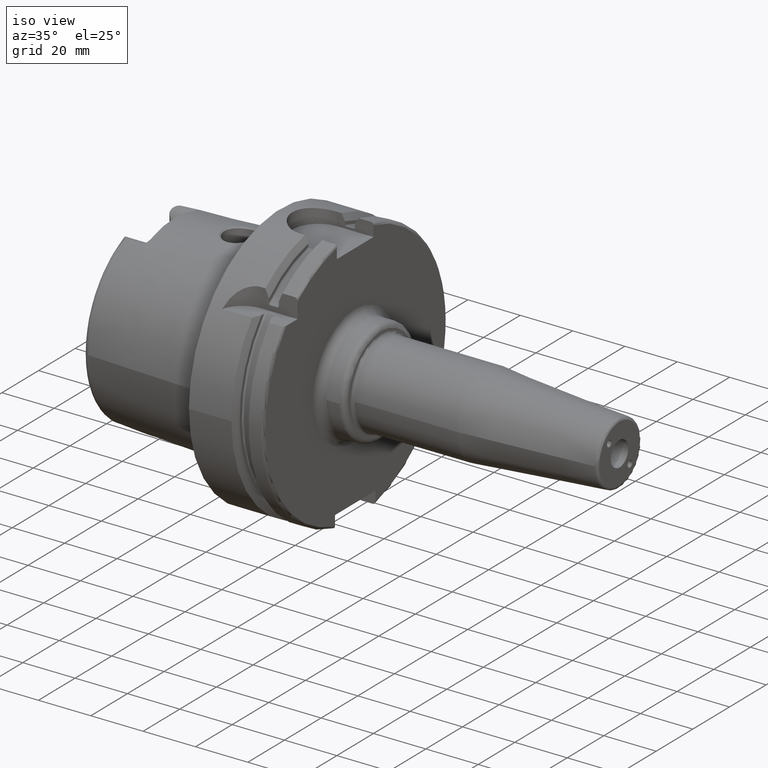
[diagram: clean part render]
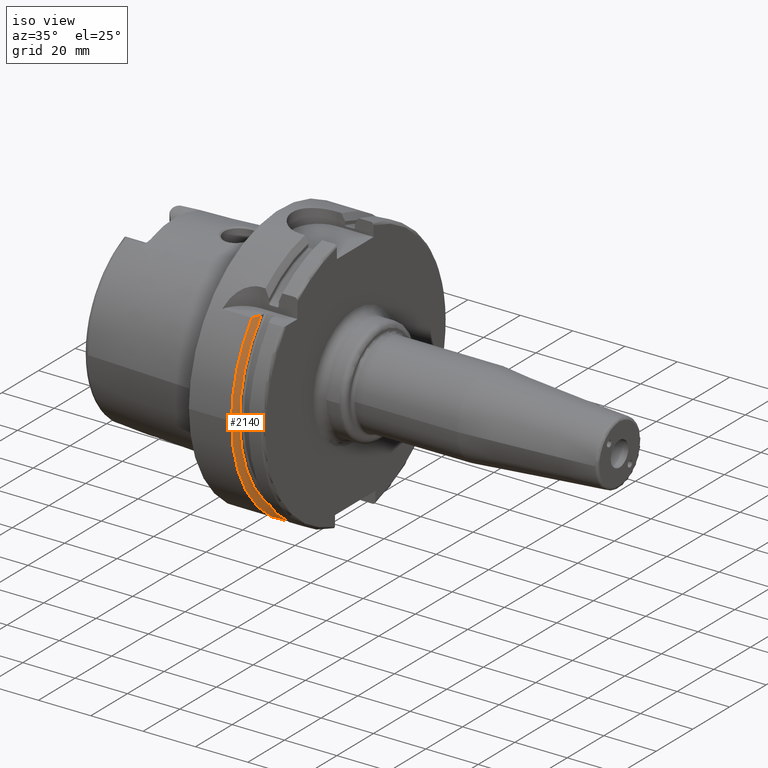
[diagram: same view with one face highlighted and labeled with its STEP entity id]
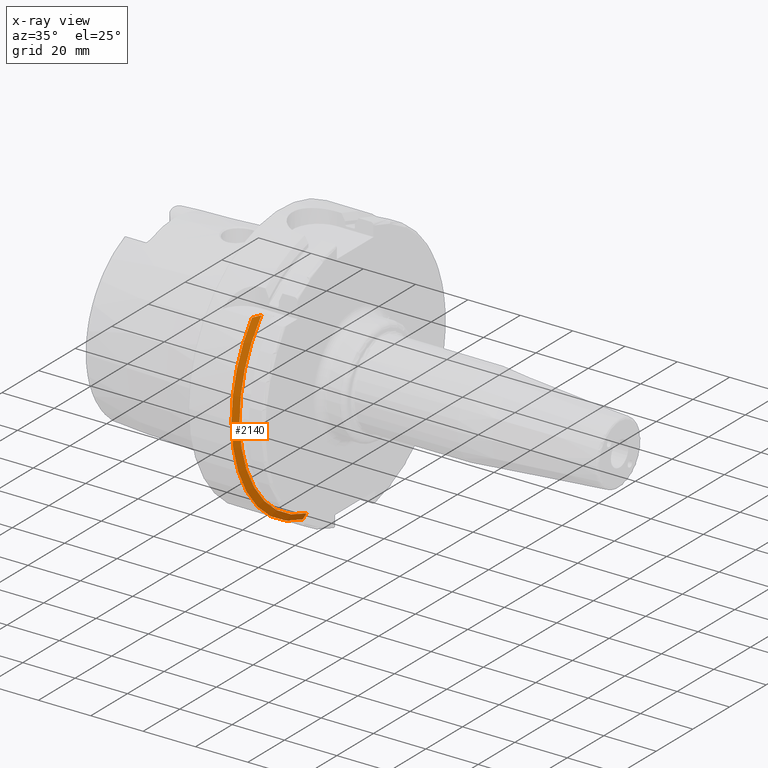
[diagram: x-ray of the same camera — body ghosted, the highlighted face saturated]
A machine part, iso view. The second image highlights one B-rep face of the part: STEP entity #2140.
The next image is the same camera in x-ray: the body ghosted, the highlighted face saturated — about 0% of this face is hidden behind the body in this view.
In plain terms, the highlighted conical surface has half-angle 60 deg.
Its self-contained STEP definition (entity closure, byte-faithful):
#19=(
BOUNDED_CURVE()
B_SPLINE_CURVE(2,(#4060,#4061,#4062),.UNSPECIFIED.,.F.,.F.)
B_SPLINE_CURVE_WITH_KNOTS((3,3),(0.,0.343884390880417),.UNSPECIFIED.)
CURVE()
GEOMETRIC_REPRESENTATION_ITEM()
RATIONAL_B_SPLINE_CURVE((1.,1.00052016257104,1.))
REPRESENTATION_ITEM('')
);
#26=(
BOUNDED_CURVE()
B_SPLINE_CURVE(2,(#4338,#4339,#4340),.UNSPECIFIED.,.F.,.F.)
B_SPLINE_CURVE_WITH_KNOTS((3,3),(0.,0.282923490805558),.UNSPECIFIED.)
CURVE()
GEOMETRIC_REPRESENTATION_ITEM()
RATIONAL_B_SPLINE_CURVE((1.,1.00031934109636,1.))
REPRESENTATION_ITEM('')
);
#326=FACE_OUTER_BOUND('',#463,.T.);
#463=EDGE_LOOP('',(#1966,#1967,#1968,#1969,#1970));
#754=CIRCLE('',#2293,50.);
#756=CIRCLE('',#2295,50.);
#817=CIRCLE('',#2423,47.5975952641917);
#947=VERTEX_POINT('',#4057);
#948=VERTEX_POINT('',#4059);
#965=VERTEX_POINT('',#4161);
#966=VERTEX_POINT('',#4163);
#994=VERTEX_POINT('',#4336);
#1198=EDGE_CURVE('',#948,#947,#19,.T.);
#1217=EDGE_CURVE('',#966,#965,#754,.T.);
#1220=EDGE_CURVE('',#947,#966,#756,.T.);
#1260=EDGE_CURVE('',#965,#994,#26,.T.);
#1350=EDGE_CURVE('',#948,#994,#817,.T.);
#1966=ORIENTED_EDGE('',*,*,#1198,.T.);
#1967=ORIENTED_EDGE('',*,*,#1220,.T.);
#1968=ORIENTED_EDGE('',*,*,#1217,.T.);
#1969=ORIENTED_EDGE('',*,*,#1260,.T.);
#1970=ORIENTED_EDGE('',*,*,#1350,.F.);
#2024=CONICAL_SURFACE('',#2422,48.7987976320958,1.0471975511966);
#2140=ADVANCED_FACE('',(#326),#2024,.T.);
#2293=AXIS2_PLACEMENT_3D('',#4164,#2745,#2746);
#2295=AXIS2_PLACEMENT_3D('',#4168,#2750,#2751);
#2422=AXIS2_PLACEMENT_3D('',#4602,#3048,#3049);
#2423=AXIS2_PLACEMENT_3D('',#4603,#3050,#3051);
#2745=DIRECTION('center_axis',(1.,0.,0.));
#2746=DIRECTION('ref_axis',(0.,0.,-1.));
#2750=DIRECTION('center_axis',(1.,0.,0.));
#2751=DIRECTION('ref_axis',(0.,0.,-1.));
#3048=DIRECTION('center_axis',(-1.,0.,0.));
#3049=DIRECTION('ref_axis',(0.,-0.951449961441176,-0.307803461438603));
#3050=DIRECTION('center_axis',(1.,0.,0.));
#3051=DIRECTION('ref_axis',(0.,0.,-1.));
#4057=CARTESIAN_POINT('',(16.7379709790786,-38.8297566307078,31.5));
#4059=CARTESIAN_POINT('',(18.125,-35.6830642593065,31.5));
#4060=CARTESIAN_POINT('Ctrl Pts',(18.125,-35.6830642593066,31.5));
#4061=CARTESIAN_POINT('Ctrl Pts',(17.4607727557241,-37.2176818849689,31.5));
#4062=CARTESIAN_POINT('Ctrl Pts',(16.7379709790786,-38.8297566307079,31.5));
#4161=CARTESIAN_POINT('',(16.7379709790786,-11.,-48.7749935930288));
#4163=CARTESIAN_POINT('',(16.7379709790786,-50.,-6.12323399573677E-15));
#4164=CARTESIAN_POINT('Origin',(16.7379709790786,0.,0.));
#4168=CARTESIAN_POINT('Origin',(16.7379709790786,0.,0.));
#4336=CARTESIAN_POINT('',(18.125,-11.,-46.3090819919139));
#4338=CARTESIAN_POINT('Ctrl Pts',(16.7379709790786,-11.,-48.7749935930288));
#4339=CARTESIAN_POINT('Ctrl Pts',(17.4494711035784,-11.,-47.5116880808765));
#4340=CARTESIAN_POINT('Ctrl Pts',(18.125,-11.,-46.3090819919139));
#4602=CARTESIAN_POINT('Origin',(17.4314854895393,0.,0.));
#4603=CARTESIAN_POINT('Origin',(18.125,0.,0.));